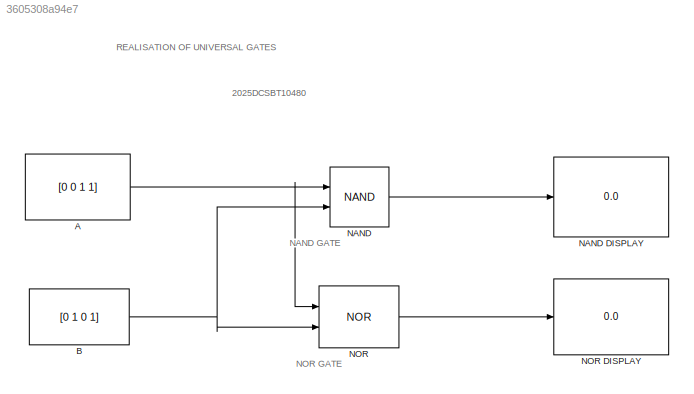
MODEL slx_3605308a94e7
KIND model
CONFIG AbsTol = auto
CONFIG EnableMultiTasking = off
CONFIG FixedStep = auto
CONFIG MaxStep = auto
CONFIG MinStep = auto
CONFIG RelTol = 1e-3
CONFIG SampleTimeConstraint = Unconstrained
CONFIG SolverName = VariableStepAuto
CONFIG StartTime = 0.0
CONFIG StopTime = 10.0
BLOCK [Constant] A
  Value = [0 0 1 1]
BLOCK [Constant] B
  Value = [0 1 0 1]
BLOCK [Logic] NAND
  AllPortsSameDT = off
  IconShape = distinctive
  Operator = NAND
  OutDataTypeStr = boolean
BLOCK [Display] NAND DISPLAY
  Decimation = 1
BLOCK [Logic] NOR
  AllPortsSameDT = off
  IconShape = distinctive
  Operator = NOR
  OutDataTypeStr = boolean
BLOCK [Display] NOR DISPLAY
  Decimation = 1
ANNOTATION (root): NAND GATE
ANNOTATION (root): NOR GATE
ANNOTATION (root): 2025DCSBT10480
ANNOTATION (root): REALISATION OF UNIVERSAL GATES
NET A:1 -> NAND:1, NOR:1
NET B:1 -> NAND:2, NOR:2
LINE NAND:1 -> NAND DISPLAY:1
LINE NOR:1 -> NOR DISPLAY:1
note: NET lines group one-source signal fan-out (src -> all destinations, sorted); 1:1 wires keep LINE
